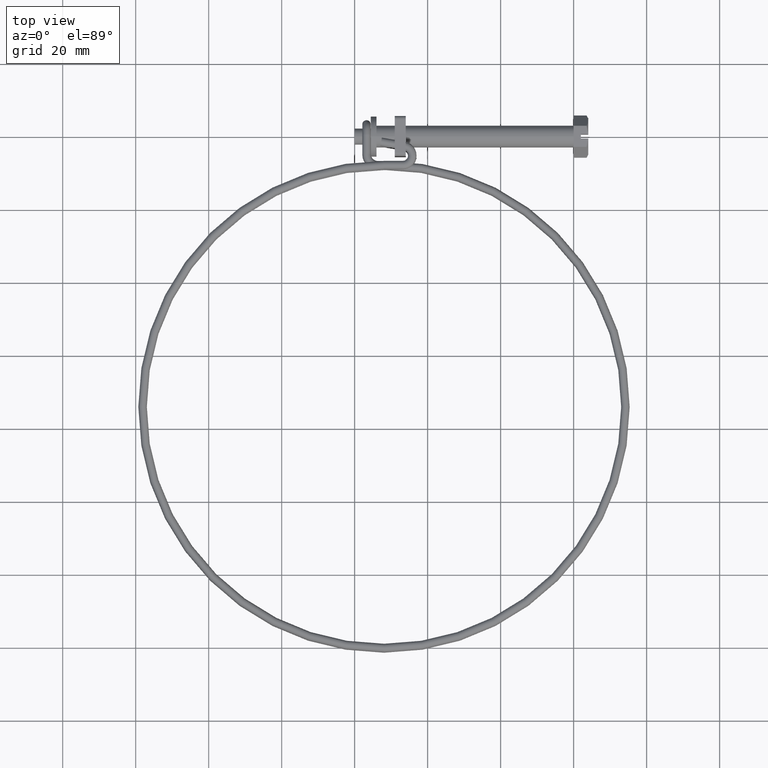
[diagram: clean part render]
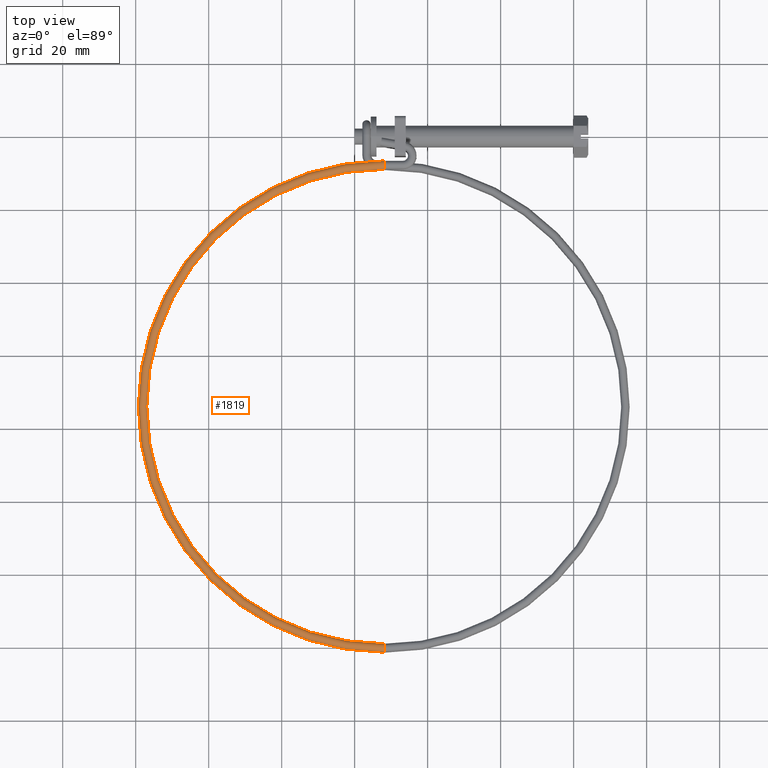
[diagram: same view with one face highlighted and labeled with its STEP entity id]
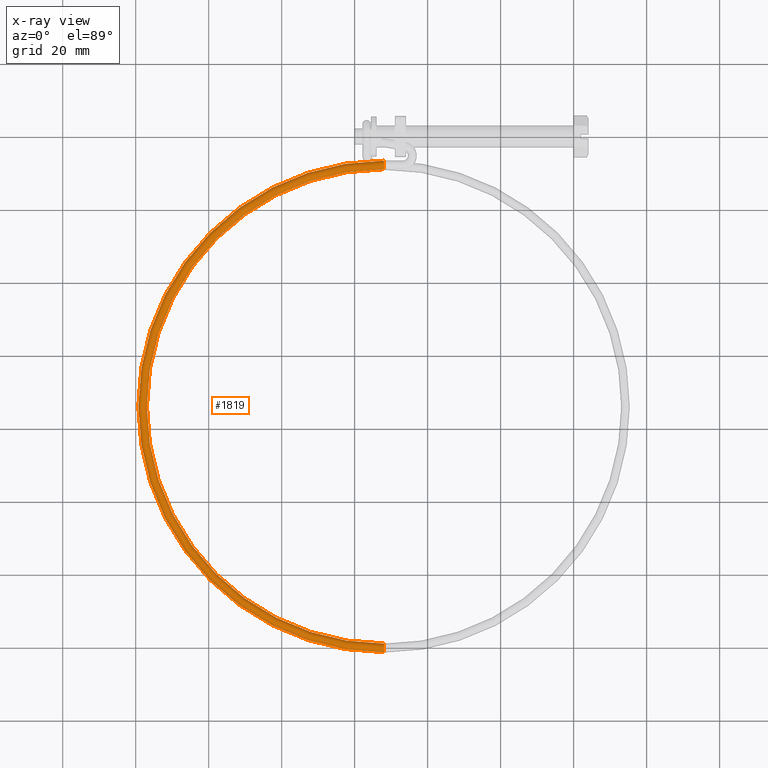
[diagram: x-ray of the same camera — body ghosted, the highlighted face saturated]
A machine part, top view. The second image highlights one B-rep face of the part: STEP entity #1819.
The next image is the same camera in x-ray: the body ghosted, the highlighted face saturated — about 0% of this face is hidden behind the body in this view.
In plain terms, the highlighted toroidal blend (fillet) surface has major radius 66.1604 mm and minor (blend) radius 1.15 mm.
Its self-contained STEP definition (entity closure, byte-faithful):
#107 = AXIS2_PLACEMENT_3D ( 'NONE', #2233, #2667, #666 ) ;
#186 = AXIS2_PLACEMENT_3D ( 'NONE', #1245, #1278, #1926 ) ;
#396 = EDGE_CURVE ( 'NONE', #2686, #2882, #2895, .T. ) ;
#467 = CIRCLE ( 'NONE', #778, 1.150000000000000400 ) ;
#508 = EDGE_CURVE ( 'NONE', #1703, #2884, #1966, .T. ) ;
#581 = CARTESIAN_POINT ( 'NONE',  ( 4.795899999999999600, -74.06164372549099500, 5.375000000000000900 ) ) ;
#593 = DIRECTION ( 'NONE',  ( -7.542275982507854200E-016, 0.9976067618839275000, -0.06914295801789838200 ) ) ;
#666 = DIRECTION ( 'NONE',  ( 0.0000000000000000000, 0.9998422812645002500, 0.01775985911543140700 ) ) ;
#689 = DIRECTION ( 'NONE',  ( 1.000000000000000000, 8.374830980649281300E-016, -9.280026525596763500E-016 ) ) ;
#690 = CARTESIAN_POINT ( 'NONE',  ( 4.795900000000006700, -140.2116437254910000, 4.200000000000001100 ) ) ;
#722 = ORIENTED_EDGE ( 'NONE', *, *, #2921, .T. ) ;
#738 = CARTESIAN_POINT ( 'NONE',  ( 4.795899999999988900, -139.0618251020368300, 4.220423837982748300 ) ) ;
#778 = AXIS2_PLACEMENT_3D ( 'NONE', #2153, #689, #2394 ) ;
#809 = DIRECTION ( 'NONE',  ( -1.000000000000000000, -1.489016563090529400E-014, -1.207367539279857700E-015 ) ) ;
#817 = DIRECTION ( 'NONE',  ( 0.0000000000000000000, 0.9998422812645003700, 0.01775985911543141400 ) ) ;
#929 = DIRECTION ( 'NONE',  ( 1.508455196501559200E-014, -0.9945218953682734000, -0.1045284632676531900 ) ) ;
#956 = ORIENTED_EDGE ( 'NONE', *, *, #2409, .F. ) ;
#975 = CARTESIAN_POINT ( 'NONE',  ( 4.795900000000925100, -9.061643725491023800, 6.550000000000000700 ) ) ;
#1245 = CARTESIAN_POINT ( 'NONE',  ( 4.795899999999999600, -74.06164372549099500, 5.375000000000000900 ) ) ;
#1258 = ORIENTED_EDGE ( 'NONE', *, *, #396, .F. ) ;
#1278 = DIRECTION ( 'NONE',  ( -0.0000000000000000000, 0.01775985911543140700, -0.9998422812645002500 ) ) ;
#1313 = AXIS2_PLACEMENT_3D ( 'NONE', #2355, #2125, #593 ) ;
#1429 = FACE_OUTER_BOUND ( 'NONE', #2769, .T. ) ;
#1537 = CARTESIAN_POINT ( 'NONE',  ( 4.795900000000925100, -9.061462348945184400, 6.529576162017255200 ) ) ;
#1703 = VERTEX_POINT ( 'NONE', #975 ) ;
#1819 = ADVANCED_FACE ( 'NONE', ( #1429 ), #3115, .T. ) ;
#1870 = VERTEX_POINT ( 'NONE', #3085 ) ;
#1926 = DIRECTION ( 'NONE',  ( 0.0000000000000000000, 0.9998422812645003700, 0.01775985911543140700 ) ) ;
#1929 = AXIS2_PLACEMENT_3D ( 'NONE', #690, #2395, #929 ) ;
#1966 = CIRCLE ( 'NONE', #1313, 1.150000000000000400 ) ;
#2027 = CARTESIAN_POINT ( 'NONE',  ( 4.795900000000923300, -6.761825102036835800, 6.570423837982747100 ) ) ;
#2108 = CIRCLE ( 'NONE', #2124, 1.150000000000009200 ) ;
#2109 = ORIENTED_EDGE ( 'NONE', *, *, #508, .F. ) ;
#2124 = AXIS2_PLACEMENT_3D ( 'NONE', #2271, #809, #2523 ) ;
#2125 = DIRECTION ( 'NONE',  ( 1.000000000000000000, 8.374830980649281300E-016, -9.280026525596763500E-016 ) ) ;
#2153 = CARTESIAN_POINT ( 'NONE',  ( 4.795900000000924200, -7.911643725491024300, 6.550000000000000700 ) ) ;
#2233 = CARTESIAN_POINT ( 'NONE',  ( 4.795899999999999600, -74.06164372549099500, 5.375000000000000900 ) ) ;
#2271 = CARTESIAN_POINT ( 'NONE',  ( 4.795900000000006700, -140.2116437254910000, 4.200000000000001100 ) ) ;
#2288 = DIRECTION ( 'NONE',  ( -0.0000000000000000000, 0.01775985911543140700, -0.9998422812645002500 ) ) ;
#2355 = CARTESIAN_POINT ( 'NONE',  ( 4.795900000000924200, -7.911643725491024300, 6.550000000000000700 ) ) ;
#2394 = DIRECTION ( 'NONE',  ( -7.542275982507854200E-016, 0.9976067618839275000, -0.06914295801789838200 ) ) ;
#2395 = DIRECTION ( 'NONE',  ( -1.000000000000000000, -1.489016563090529400E-014, -1.207367539279857700E-015 ) ) ;
#2409 = EDGE_CURVE ( 'NONE', #2882, #1703, #467, .T. ) ;
#2443 = AXIS2_PLACEMENT_3D ( 'NONE', #581, #2288, #817 ) ;
#2471 = EDGE_CURVE ( 'NONE', #1870, #2605, #2886, .T. ) ;
#2517 = ORIENTED_EDGE ( 'NONE', *, *, #2471, .T. ) ;
#2523 = DIRECTION ( 'NONE',  ( 1.508455196501559200E-014, -0.9945218953682734000, -0.1045284632676531900 ) ) ;
#2605 = VERTEX_POINT ( 'NONE', #738 ) ;
#2630 = ORIENTED_EDGE ( 'NONE', *, *, #2897, .T. ) ;
#2667 = DIRECTION ( 'NONE',  ( -0.0000000000000000000, 0.01775985911543140700, -0.9998422812645002500 ) ) ;
#2686 = VERTEX_POINT ( 'NONE', #2942 ) ;
#2730 = CIRCLE ( 'NONE', #2443, 65.01043474010731400 ) ;
#2769 = EDGE_LOOP ( 'NONE', ( #1258, #2630, #2517, #722, #2109, #956 ) ) ;
#2882 = VERTEX_POINT ( 'NONE', #2027 ) ;
#2884 = VERTEX_POINT ( 'NONE', #1537 ) ;
#2886 = CIRCLE ( 'NONE', #1929, 1.150000000000009200 ) ;
#2895 = CIRCLE ( 'NONE', #186, 67.31043474010731100 ) ;
#2897 = EDGE_CURVE ( 'NONE', #2686, #1870, #2108, .T. ) ;
#2921 = EDGE_CURVE ( 'NONE', #2605, #2884, #2730, .T. ) ;
#2942 = CARTESIAN_POINT ( 'NONE',  ( 4.795900000000023600, -141.3614623489451700, 4.179576162017255600 ) ) ;
#3085 = CARTESIAN_POINT ( 'NONE',  ( 4.795900000000022700, -141.3616437254909800, 4.200000000000001100 ) ) ;
#3115 = TOROIDAL_SURFACE ( 'NONE', #107, 66.16043474010732000, 1.149999999999999900 ) ;